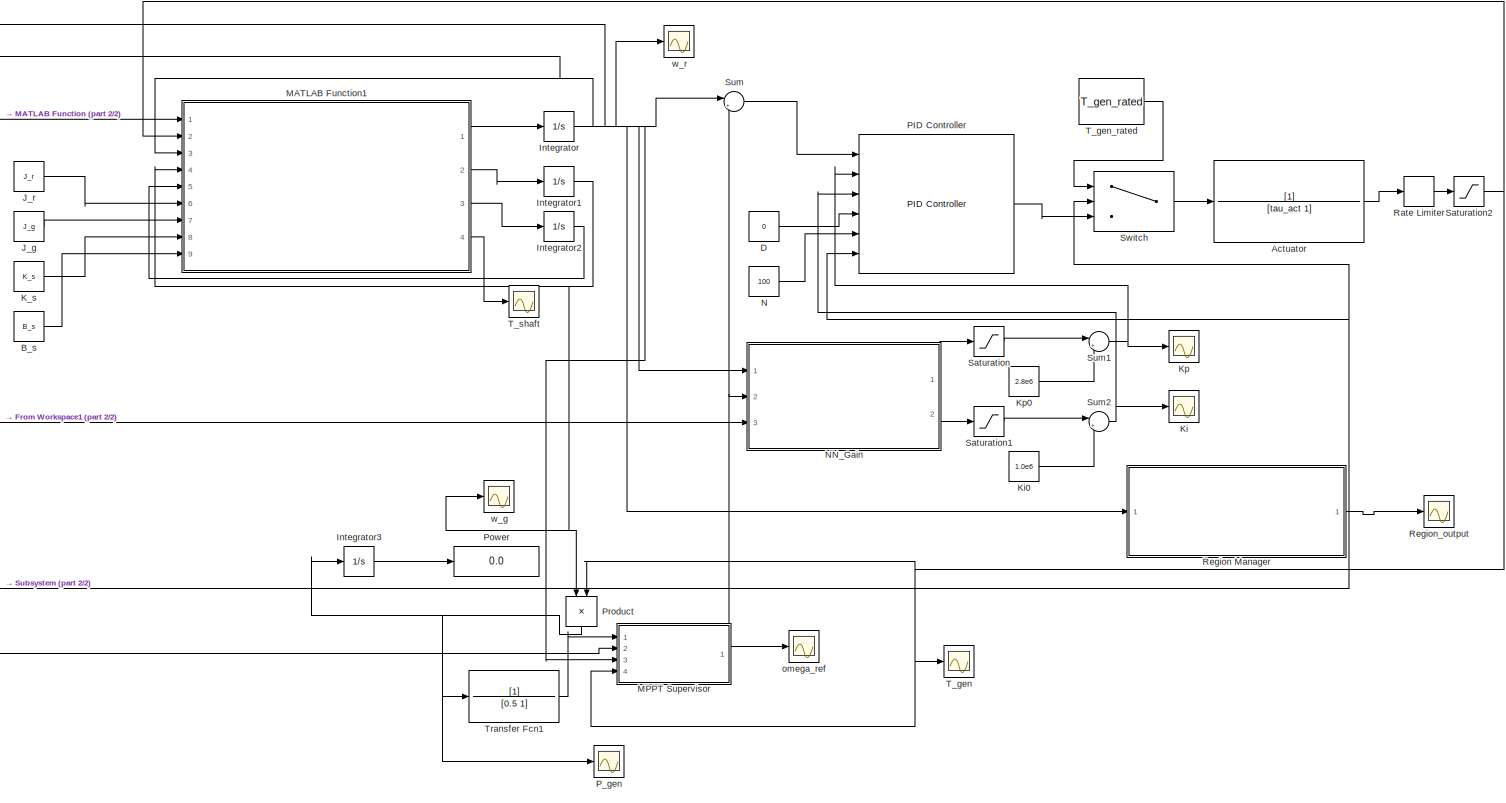
[diagram: root canvas - part 1/2, right side, full height]
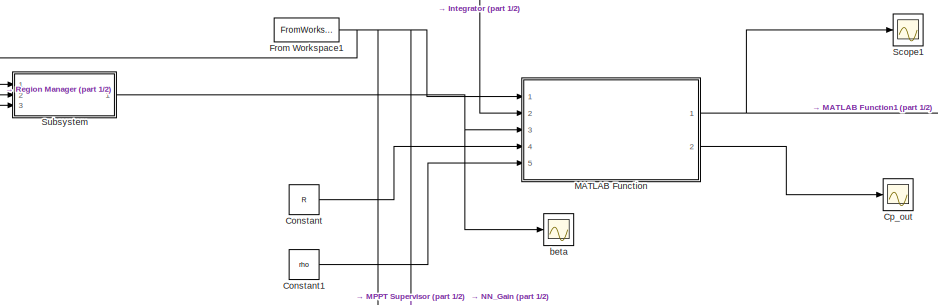
[diagram: root canvas - part 2/2, top left region]
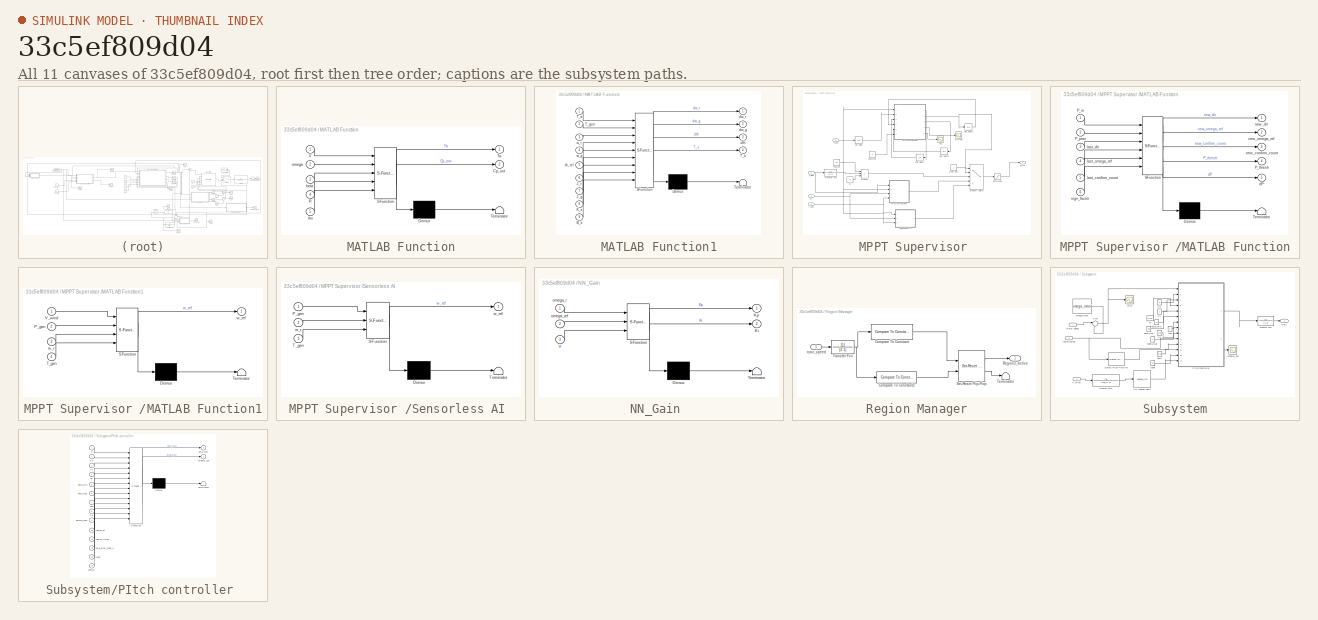
[diagram: thumbnail index - all 11 canvases of the model, root first then tree order]
MODEL slx_33c5ef809d04
KIND model
CONFIG AbsTol = auto
CONFIG EnableMultiTasking = off
CONFIG FixedStep = auto
CONFIG MaxStep = auto
CONFIG MinStep = auto
CONFIG RelTol = 1e-3
CONFIG SampleTimeConstraint = Unconstrained
CONFIG Solver = VariableStepAuto
CONFIG SolverName = VariableStepAuto
CONFIG StartTime = 0.0
CONFIG StopTime = 200
BLOCK [TransferFcn] Actuator
  Denominator = [tau_act 1]
BLOCK [Constant] B_s
  Value = B_s
BLOCK [Constant] Constant
  Value = R
BLOCK [Constant] Constant1
  Value = rho
BLOCK [Scope] Cp_out 
  Floating = off
  NumInputPorts = 1
  Ports = [1]
  ScopeSpecificationString = Simulink.scopes.TimeScopeBlockCfg('CurrentConfiguration', extmgr.ConfigurationSet(extmgr.Configuration('Core','General UI',true),extmgr.Configuration('Core','Source UI',true),extmgr.Configuration('Sources','WiredSimulink',true),extmgr.Configuration('Visuals','Time Domain',true,'SerializedDisplays',{struct('MinYLimReal','0.31469','MaxYLimReal','0.43768','YLabelReal','','MinYLimMag','0.31469','MaxYL...<+1373ch>
BLOCK [Constant] D
  Value = 0
BLOCK [FromWorkspace] From Workspace1
  SampleTime = 0.001
  VariableName = wind_ts
  ZeroCross = on
BLOCK [Integrator] Integrator
  InitialCondition = 1.5
  Ports = [1, 1]
BLOCK [Integrator] Integrator1
  Ports = [1, 1]
BLOCK [Integrator] Integrator2
  Ports = [1, 1]
BLOCK [Integrator] Integrator3
  Ports = [1, 1]
BLOCK [Constant] J_g
  Value = J_g
BLOCK [Constant] J_r
  Value = J_r
BLOCK [Constant] K_s
  Value = K_s
BLOCK [Scope] Ki 
  Floating = off
  NumInputPorts = 1
  Ports = [1]
  ScopeSpecificationString = Simulink.scopes.TimeScopeBlockCfg('CurrentConfiguration', extmgr.ConfigurationSet(extmgr.Configuration('Core','General UI',true),extmgr.Configuration('Core','Source UI',true),extmgr.Configuration('Sources','WiredSimulink',true,'DataLoggingVariableName','ScopeData1'),extmgr.Configuration('Visuals','Time Domain',true,'SerializedDisplays',{struct('MinYLimReal','300000.00000','MaxYLimReal','2300000.00...<+1438ch>
BLOCK [Constant] Ki0
  Value = 1.0e6
BLOCK [Scope] Kp
  Floating = off
  NumInputPorts = 1
  Ports = [1]
  ScopeSpecificationString = Simulink.scopes.TimeScopeBlockCfg('CurrentConfiguration', extmgr.ConfigurationSet(extmgr.Configuration('Core','General UI',true),extmgr.Configuration('Core','Source UI',true),extmgr.Configuration('Sources','WiredSimulink',true,'DataLoggingVariableName','ScopeData2'),extmgr.Configuration('Visuals','Time Domain',true,'SerializedDisplays',{struct('MinYLimReal','2430174.18942','MaxYLimReal','2431273.3...<+1440ch>
BLOCK [Constant] Kp0
  Value = 2.8e6
BLOCK [SubSystem] MATLAB Function
  ErrorFcn = Stateflow.Translate.translate
  PermitHierarchicalResolution = ExplicitOnly
  Ports = [5, 2]
  RequestExecContextInheritance = off
  SFBlockType = MATLAB Function
  TreatAsAtomicUnit = on
BLOCK [Demux] MATLAB Function/ Demux 
  Outputs = 1
  Ports = [1, 1]
BLOCK [S-Function] MATLAB Function/ SFunction 
  EnableBusSupport = on
  FunctionName = sf_sfun
  PortCounts = [5 3]
  Ports = [5, 3]
  SFcnIsStateOwnerBlock = off
  SFunctionDeploymentMode = off
  Tag = Stateflow S-Function 2
BLOCK [Terminator] MATLAB Function/ Terminator 
BLOCK [Outport] MATLAB Function/Cp_out
  IconDisplay = Port number
  Port = 2
BLOCK [Inport] MATLAB Function/R
  IconDisplay = Port number
  Port = 4
BLOCK [Outport] MATLAB Function/Ta
  IconDisplay = Port number
BLOCK [Inport] MATLAB Function/V
  IconDisplay = Port number
BLOCK [Inport] MATLAB Function/beta
  IconDisplay = Port number
  Port = 3
BLOCK [Inport] MATLAB Function/omega
  IconDisplay = Port number
  Port = 2
BLOCK [Inport] MATLAB Function/rho
  IconDisplay = Port number
  Port = 5
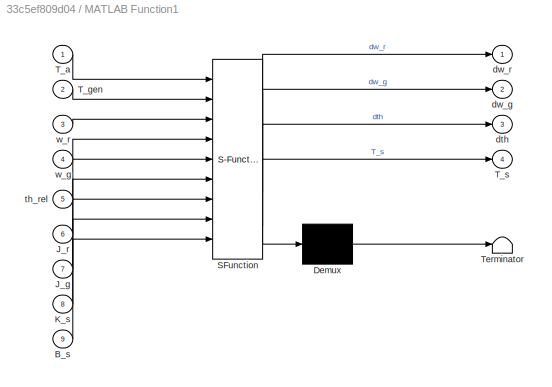
BLOCK [SubSystem] MATLAB Function1
  ErrorFcn = Stateflow.Translate.translate
  PermitHierarchicalResolution = ExplicitOnly
  Ports = [9, 4]
  RequestExecContextInheritance = off
  SFBlockType = MATLAB Function
  TreatAsAtomicUnit = on
BLOCK [Demux] MATLAB Function1/ Demux 
  Outputs = 1
  Ports = [1, 1]
BLOCK [S-Function] MATLAB Function1/ SFunction 
  EnableBusSupport = on
  FunctionName = sf_sfun
  PortCounts = [9 5]
  Ports = [9, 5]
  SFcnIsStateOwnerBlock = off
  SFunctionDeploymentMode = off
  Tag = Stateflow S-Function 1
BLOCK [Terminator] MATLAB Function1/ Terminator 
BLOCK [Inport] MATLAB Function1/B_s
  IconDisplay = Port number
  Port = 9
BLOCK [Inport] MATLAB Function1/J_g
  IconDisplay = Port number
  Port = 7
BLOCK [Inport] MATLAB Function1/J_r
  IconDisplay = Port number
  Port = 6
BLOCK [Inport] MATLAB Function1/K_s
  IconDisplay = Port number
  Port = 8
BLOCK [Inport] MATLAB Function1/T_a
  IconDisplay = Port number
BLOCK [Inport] MATLAB Function1/T_gen
  IconDisplay = Port number
  Port = 2
BLOCK [Outport] MATLAB Function1/T_s
  IconDisplay = Port number
  Port = 4
BLOCK [Outport] MATLAB Function1/dth
  IconDisplay = Port number
  Port = 3
BLOCK [Outport] MATLAB Function1/dw_g
  IconDisplay = Port number
  Port = 2
BLOCK [Outport] MATLAB Function1/dw_r
  IconDisplay = Port number
BLOCK [Inport] MATLAB Function1/th_rel
  IconDisplay = Port number
  Port = 5
BLOCK [Inport] MATLAB Function1/w_g
  IconDisplay = Port number
  Port = 4
BLOCK [Inport] MATLAB Function1/w_r
  IconDisplay = Port number
  Port = 3
BLOCK [SubSystem] MPPT Supervisor 
  Ports = [4, 1]
  RequestExecContextInheritance = off
BLOCK [Constant] MPPT Supervisor /Constant
  Value = -1
BLOCK [SubSystem] MPPT Supervisor /MATLAB Function
  ErrorFcn = Stateflow.Translate.translate
  PermitHierarchicalResolution = ExplicitOnly
  Ports = [6, 5]
  RequestExecContextInheritance = off
  SFBlockType = MATLAB Function
  TreatAsAtomicUnit = on
BLOCK [Demux] MPPT Supervisor /MATLAB Function/ Demux 
  Outputs = 1
  Ports = [1, 1]
BLOCK [S-Function] MPPT Supervisor /MATLAB Function/ SFunction 
  EnableBusSupport = on
  FunctionName = sf_sfun
  PortCounts = [6 6]
  Ports = [6, 6]
  SFcnIsStateOwnerBlock = off
  SFunctionDeploymentMode = off
  Tag = Stateflow S-Function 4
BLOCK [Terminator] MPPT Supervisor /MATLAB Function/ Terminator 
BLOCK [Inport] MPPT Supervisor /MATLAB Function/P_in
  IconDisplay = Port number
BLOCK [Inport] MPPT Supervisor /MATLAB Function/P_prev
  IconDisplay = Port number
  Port = 2
BLOCK [Outport] MPPT Supervisor /MATLAB Function/P_thresh
  IconDisplay = Port number
  Port = 4
BLOCK [Outport] MPPT Supervisor /MATLAB Function/dP
  IconDisplay = Port number
  Port = 5
BLOCK [Inport] MPPT Supervisor /MATLAB Function/last_confirm_count
  IconDisplay = Port number
  Port = 5
BLOCK [Inport] MPPT Supervisor /MATLAB Function/last_dir
  IconDisplay = Port number
  Port = 3
BLOCK [Inport] MPPT Supervisor /MATLAB Function/last_omega_ref
  IconDisplay = Port number
  Port = 4
BLOCK [Outport] MPPT Supervisor /MATLAB Function/new_confirm_count
  IconDisplay = Port number
  Port = 3
BLOCK [Outport] MPPT Supervisor /MATLAB Function/new_dir
  IconDisplay = Port number
BLOCK [Outport] MPPT Supervisor /MATLAB Function/new_omega_ref
  IconDisplay = Port number
  Port = 2
BLOCK [Inport] MPPT Supervisor /MATLAB Function/sign_factor
  IconDisplay = Port number
  Port = 6
BLOCK [SubSystem] MPPT Supervisor /MATLAB Function1
  ErrorFcn = Stateflow.Translate.translate
  PermitHierarchicalResolution = ExplicitOnly
  Ports = [4, 1]
  RequestExecContextInheritance = off
  SFBlockType = MATLAB Function
  TreatAsAtomicUnit = on
BLOCK [Demux] MPPT Supervisor /MATLAB Function1/ Demux 
  Outputs = 1
  Ports = [1, 1]
BLOCK [S-Function] MPPT Supervisor /MATLAB Function1/ SFunction 
  EnableBusSupport = on
  FunctionName = sf_sfun
  PortCounts = [4 2]
  Ports = [4, 2]
  SFcnIsStateOwnerBlock = off
  SFunctionDeploymentMode = off
  Tag = Stateflow S-Function 6
BLOCK [Terminator] MPPT Supervisor /MATLAB Function1/ Terminator 
BLOCK [Inport] MPPT Supervisor /MATLAB Function1/P_gen
  IconDisplay = Port number
  Port = 2
BLOCK [Inport] MPPT Supervisor /MATLAB Function1/T_gen
  IconDisplay = Port number
  Port = 4
BLOCK [Inport] MPPT Supervisor /MATLAB Function1/V_wind
  IconDisplay = Port number
BLOCK [Inport] MPPT Supervisor /MATLAB Function1/w_r
  IconDisplay = Port number
  Port = 3
BLOCK [Outport] MPPT Supervisor /MATLAB Function1/w_ref
  IconDisplay = Port number
BLOCK [Constant] MPPT Supervisor /MPPT Port
BLOCK [MultiPortSwitch] MPPT Supervisor /Multiport Switch
  InputSameDT = off
  Inputs = 4
  Ports = [5, 1]
  SaturateOnIntegerOverflow = off
BLOCK [Inport] MPPT Supervisor /P_gen 
  IconDisplay = Port number
BLOCK [Scope] MPPT Supervisor /P_thresh
  Floating = off
  NumInputPorts = 1
  Ports = [1]
  ScopeSpecificationString = Simulink.scopes.TimeScopeBlockCfg('CurrentConfiguration', extmgr.ConfigurationSet(extmgr.Configuration('Core','General UI',true),extmgr.Configuration('Core','Source UI',true),extmgr.Configuration('Sources','WiredSimulink',true,'DataLoggingVariableName','ScopeData1'),extmgr.Configuration('Visuals','Time Domain',true,'SerializedDisplays',{struct('MinYLimReal','-1145.65235','MaxYLimReal','11310.87118...<+1445ch>
BLOCK [Product] MPPT Supervisor /Product
  InputSameDT = off
  Inputs = **/
  OutDataTypeStr = Inherit: Inherit via internal rule
  Ports = [3, 1]
  RndMeth = Floor
  SaturateOnIntegerOverflow = off
BLOCK [Constant] MPPT Supervisor /R 
  Value = R
BLOCK [Saturate] MPPT Supervisor /Saturation
  InputPortMap = u0
  LowerLimit = 0.7
  Ports = [1, 1]
  UpperLimit = 2.2
BLOCK [SubSystem] MPPT Supervisor /Sensorless AI 
  ErrorFcn = Stateflow.Translate.translate
  PermitHierarchicalResolution = ExplicitOnly
  Ports = [3, 1]
  RequestExecContextInheritance = off
  SFBlockType = MATLAB Function
  TreatAsAtomicUnit = on
BLOCK [Demux] MPPT Supervisor /Sensorless AI / Demux 
  Outputs = 1
  Ports = [1, 1]
BLOCK [S-Function] MPPT Supervisor /Sensorless AI / SFunction 
  EnableBusSupport = on
  FunctionName = sf_sfun
  PortCounts = [3 2]
  Ports = [3, 2]
  SFcnIsStateOwnerBlock = off
  SFunctionDeploymentMode = off
  Tag = Stateflow S-Function 7
BLOCK [Terminator] MPPT Supervisor /Sensorless AI / Terminator 
BLOCK [Inport] MPPT Supervisor /Sensorless AI /P_gen
  IconDisplay = Port number
BLOCK [Inport] MPPT Supervisor /Sensorless AI /T_gen
  IconDisplay = Port number
  Port = 3
BLOCK [Inport] MPPT Supervisor /Sensorless AI /w_r
  IconDisplay = Port number
  Port = 2
BLOCK [Outport] MPPT Supervisor /Sensorless AI /w_ref
  IconDisplay = Port number
BLOCK [Constant] MPPT Supervisor /TSR_opt 
  Value = 8.1
BLOCK [Inport] MPPT Supervisor /T_gen 
  IconDisplay = Port number
  Port = 4
BLOCK [TransferFcn] MPPT Supervisor /Transfer Fcn
  Denominator = [1 1]
BLOCK [UnitDelay] MPPT Supervisor /Unit Delay
  HasFrameUpgradeWarning = on
BLOCK [UnitDelay] MPPT Supervisor /Unit Delay1
  HasFrameUpgradeWarning = on
  InitialCondition = 1
BLOCK [UnitDelay] MPPT Supervisor /Unit Delay2
  HasFrameUpgradeWarning = on
  InitialCondition = 1.5
BLOCK [UnitDelay] MPPT Supervisor /Unit Delay3
  HasFrameUpgradeWarning = on
BLOCK [Inport] MPPT Supervisor /V_wind 
  IconDisplay = Port number
  Port = 2
BLOCK [Scope] MPPT Supervisor /dp 
  Floating = off
  NumInputPorts = 1
  Ports = [1]
  ScopeSpecificationString = Simulink.scopes.TimeScopeBlockCfg('CurrentConfiguration', extmgr.ConfigurationSet(extmgr.Configuration('Core','General UI',true),extmgr.Configuration('Core','Source UI',true),extmgr.Configuration('Sources','WiredSimulink',true,'DataLoggingVariableName','ScopeData2'),extmgr.Configuration('Visuals','Time Domain',true,'SerializedDisplays',{struct('MinYLimReal','-396506.79542','MaxYLimReal','927633.08...<+1494ch>
BLOCK [Inport] MPPT Supervisor /w_r
  IconDisplay = Port number
  Port = 3
BLOCK [Outport] MPPT Supervisor /w_ref
  IconDisplay = Port number
BLOCK [Constant] N 
  Value = 100
BLOCK [SubSystem] NN_Gain 
  ErrorFcn = Stateflow.Translate.translate
  PermitHierarchicalResolution = ExplicitOnly
  Ports = [3, 2]
  RequestExecContextInheritance = off
  SFBlockType = MATLAB Function
  TreatAsAtomicUnit = on
BLOCK [Demux] NN_Gain / Demux 
  Outputs = 1
  Ports = [1, 1]
BLOCK [S-Function] NN_Gain / SFunction 
  EnableBusSupport = on
  FunctionName = sf_sfun
  PortCounts = [3 3]
  Ports = [3, 3]
  SFcnIsStateOwnerBlock = off
  SFunctionDeploymentMode = off
  Tag = Stateflow S-Function 3
BLOCK [Terminator] NN_Gain / Terminator 
BLOCK [Outport] NN_Gain /Ki
  IconDisplay = Port number
  Port = 2
BLOCK [Outport] NN_Gain /Kp
  IconDisplay = Port number
BLOCK [Inport] NN_Gain /V
  IconDisplay = Port number
  Port = 3
BLOCK [Inport] NN_Gain /omega_r
  IconDisplay = Port number
BLOCK [Inport] NN_Gain /omega_ref
  IconDisplay = Port number
  Port = 2
BLOCK [Reference] PID Controller  REF=simulink/Continuous/PID Controller
  Ports = [6, 1]
  SourceBlock = simulink/Continuous/PID Controller
  SourceProductBaseCode = SL
  SourceProductName = Simulink
  SourceType = PID 1dof
BLOCK [Scope] P_gen 
  Floating = off
  NumInputPorts = 1
  Ports = [1]
  ScopeSpecificationString = Simulink.scopes.TimeScopeBlockCfg('CurrentConfiguration', extmgr.ConfigurationSet(extmgr.Configuration('Core','General UI',true),extmgr.Configuration('Core','Source UI',true),extmgr.Configuration('Sources','WiredSimulink',true,'DataLoggingVariableName','ScopeData2'),extmgr.Configuration('Visuals','Time Domain',true,'SerializedDisplays',{struct('MinYLimReal','-242584.06986','MaxYLimReal','2183256.6...<+1480ch>
BLOCK [Display] Power
  Decimation = 1
  Ports = [1]
BLOCK [Product] Product
  InputSameDT = off
  OutDataTypeStr = Inherit: Inherit via internal rule
  Ports = [2, 1]
  RndMeth = Floor
  SaturateOnIntegerOverflow = off
BLOCK [RateLimiter] Rate Limiter
  FallingSlewLimit = -1e5
  RisingSlewLimit = 1e5
  SampleTimeMode = inherited
BLOCK [SubSystem] Region Manager
  Ports = [1, 1]
  RequestExecContextInheritance = off
BLOCK [Reference] Region Manager/Compare To Constant  REF=simulink/Logic and Bit
Operations/Compare
To Constant
  Ports = [1, 1]
  SourceBlock = simulink/Logic and Bit\nOperations/Compare\nTo Constant
  SourceProductBaseCode = SL
  SourceProductName = Simulink
  SourceType = Compare To Constant
BLOCK [Reference] Region Manager/Compare To Constant2  REF=simulink/Logic and Bit
Operations/Compare
To Constant
  Ports = [1, 1]
  SourceBlock = simulink/Logic and Bit\nOperations/Compare\nTo Constant
  SourceProductBaseCode = SL
  SourceProductName = Simulink
  SourceType = Compare To Constant
BLOCK [Outport] Region Manager/Region3_active 
  IconDisplay = Port number
BLOCK [Reference] Region Manager/Set-Reset Flip-Flop  REF=eeGeneralControl/Set-Reset Flip-Flop
  Ports = [2, 2]
  SourceBlock = eeGeneralControl/Set-Reset Flip-Flop
  SourceProductBaseCode = PS
  SourceProductName = Simscape Electrical
  SourceType = Set-Reset Flip-Flop
BLOCK [Terminator] Region Manager/Terminator
BLOCK [TransferFcn] Region Manager/Transfer Fcn
  Denominator = [2 1]
BLOCK [Inport] Region Manager/rotor_speed 
  IconDisplay = Port number
BLOCK [Scope] Region_output 
  Floating = off
  NumInputPorts = 1
  Ports = [1]
  ScopeSpecificationString = Simulink.scopes.TimeScopeBlockCfg('CurrentConfiguration', extmgr.ConfigurationSet(extmgr.Configuration('Core','General UI',true),extmgr.Configuration('Core','Source UI',true),extmgr.Configuration('Sources','WiredSimulink',true,'DataLoggingVariableName','ScopeData4'),extmgr.Configuration('Visuals','Time Domain',true,'SerializedDisplays',{struct('MinYLimReal','-0.125','MaxYLimReal','1.125','YLabelRe...<+1424ch>
BLOCK [Saturate] Saturation
  InputPortMap = u0
  LowerLimit = -8.4e5
  Ports = [1, 1]
  UpperLimit = 8.4e5
BLOCK [Saturate] Saturation1
  InputPortMap = u0
  LowerLimit = -3e5
  Ports = [1, 1]
  UpperLimit = 3e5
BLOCK [Saturate] Saturation2
  InputPortMap = u0
  LowerLimit = -8e5
  Ports = [1, 1]
  UpperLimit = 8e5
BLOCK [Scope] Scope1
  Floating = off
  NumInputPorts = 1
  Ports = [1]
  ScopeSpecificationString = Simulink.scopes.TimeScopeBlockCfg('CurrentConfiguration', extmgr.ConfigurationSet(extmgr.Configuration('Core','General UI',true),extmgr.Configuration('Core','Source UI',true),extmgr.Configuration('Sources','WiredSimulink',true,'DataLoggingVariableName','ScopeData1'),extmgr.Configuration('Visuals','Time Domain',true,'SerializedDisplays',{struct('MinYLimReal','-2417.69691','MaxYLimReal','38461.72479...<+1403ch>
BLOCK [SubSystem] Subsystem
  Ports = [3, 1]
  RequestExecContextInheritance = off
BLOCK [Lookup_n-D] Subsystem/1-D Lookup Table
  BreakpointsForDimension1 = FF_Wind_Axis
  InternalRulePriority = Speed
  NumberOfTableDimensions = 1
  Ports = [1, 1]
  RndMeth = Simplest
  Table = FF_Pitch_Table
BLOCK [Reference] Subsystem/Detect Rise Positive  REF=simulink/Logic and Bit
Operations/Detect Rise
Positive
  Ports = [1, 1]
  SourceBlock = simulink/Logic and Bit\nOperations/Detect Rise\nPositive
  SourceProductBaseCode = SL
  SourceProductName = Simulink
  SourceType = Detect Rise Positive
BLOCK [Constant] Subsystem/Kb
  Value = 0.05
BLOCK [Constant] Subsystem/Ki
BLOCK [Constant] Subsystem/Kp
  Value = 3
BLOCK [Outport] Subsystem/Out1
  IconDisplay = Port number
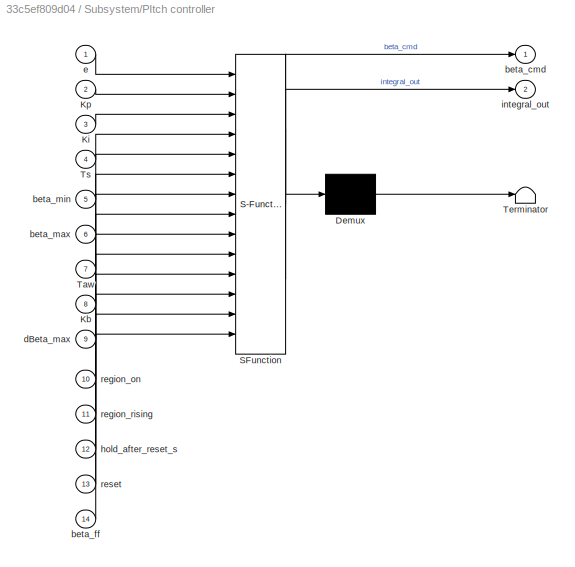
BLOCK [SubSystem] Subsystem/PItch controller 
  ErrorFcn = Stateflow.Translate.translate
  PermitHierarchicalResolution = ExplicitOnly
  Ports = [14, 2]
  RequestExecContextInheritance = off
  SFBlockType = MATLAB Function
  TreatAsAtomicUnit = on
BLOCK [Demux] Subsystem/PItch controller / Demux 
  Outputs = 1
  Ports = [1, 1]
BLOCK [S-Function] Subsystem/PItch controller / SFunction 
  EnableBusSupport = on
  FunctionName = sf_sfun
  PortCounts = [14 3]
  Ports = [14, 3]
  SFcnIsStateOwnerBlock = off
  SFunctionDeploymentMode = off
  Tag = Stateflow S-Function 5
BLOCK [Terminator] Subsystem/PItch controller / Terminator 
BLOCK [Inport] Subsystem/PItch controller /Kb
  IconDisplay = Port number
  Port = 8
BLOCK [Inport] Subsystem/PItch controller /Ki
  IconDisplay = Port number
  Port = 3
BLOCK [Inport] Subsystem/PItch controller /Kp
  IconDisplay = Port number
  Port = 2
BLOCK [Inport] Subsystem/PItch controller /Taw
  IconDisplay = Port number
  Port = 7
BLOCK [Inport] Subsystem/PItch controller /Ts
  IconDisplay = Port number
  Port = 4
BLOCK [Outport] Subsystem/PItch controller /beta_cmd
  IconDisplay = Port number
BLOCK [Inport] Subsystem/PItch controller /beta_ff
  IconDisplay = Port number
  Port = 14
BLOCK [Inport] Subsystem/PItch controller /beta_max
  IconDisplay = Port number
  Port = 6
BLOCK [Inport] Subsystem/PItch controller /beta_min
  IconDisplay = Port number
  Port = 5
BLOCK [Inport] Subsystem/PItch controller /dBeta_max
  IconDisplay = Port number
  Port = 9
BLOCK [Inport] Subsystem/PItch controller /e
  IconDisplay = Port number
BLOCK [Inport] Subsystem/PItch controller /hold_after_reset_s
  IconDisplay = Port number
  Port = 12
BLOCK [Outport] Subsystem/PItch controller /integral_out
  IconDisplay = Port number
  Port = 2
BLOCK [Inport] Subsystem/PItch controller /region_on
  IconDisplay = Port number
  Port = 10
BLOCK [Inport] Subsystem/PItch controller /region_rising
  IconDisplay = Port number
  Port = 11
BLOCK [Inport] Subsystem/PItch controller /reset
  IconDisplay = Port number
  Port = 13
BLOCK [Inport] Subsystem/Rotor speed
  IconDisplay = Port number
BLOCK [Sum] Subsystem/Sum
  IconShape = round
  InputSameDT = off
  Inputs = |+-
  OutDataTypeStr = Inherit: Inherit via internal rule
  Ports = [2, 1]
  SaturateOnIntegerOverflow = off
BLOCK [Constant] Subsystem/Taw
  Value = 0.1
BLOCK [TransferFcn] Subsystem/Transfer Fcn
  Denominator = [1 1]
BLOCK [TransferFcn] Subsystem/Transfer Fcn1
  Denominator = [tau_ff 1]
BLOCK [Constant] Subsystem/Ts
  Value = 0.01
BLOCK [Inport] Subsystem/V_wind 
  IconDisplay = Port number
  Port = 3
BLOCK [Constant] Subsystem/beta_max
  Value = 30
BLOCK [Constant] Subsystem/beta_min
  Value = 0
BLOCK [Constant] Subsystem/dbeta_Max
  Value = 4
BLOCK [Scope] Subsystem/error
  Floating = off
  NumInputPorts = 1
  Ports = [1]
  ScopeSpecificationString = Simulink.scopes.TimeScopeBlockCfg('CurrentConfiguration', extmgr.ConfigurationSet(extmgr.Configuration('Core','General UI',true),extmgr.Configuration('Core','Source UI',true),extmgr.Configuration('Sources','WiredSimulink',true,'DataLoggingVariableName','ScopeData1'),extmgr.Configuration('Visuals','Time Domain',true),extmgr.Configuration('Tools','Plot Navigation',true),extmgr.Configuration('Tools',...<+40ch>
BLOCK [Constant] Subsystem/hold
  Value = 0.5
BLOCK [Scope] Subsystem/integral_out 
  Floating = off
  NumInputPorts = 1
  Ports = [1]
  ScopeSpecificationString = Simulink.scopes.TimeScopeBlockCfg('CurrentConfiguration', extmgr.ConfigurationSet(extmgr.Configuration('Core','General UI',true),extmgr.Configuration('Core','Source UI',true),extmgr.Configuration('Sources','WiredSimulink',true,'DataLoggingVariableName','ScopeData1'),extmgr.Configuration('Visuals','Time Domain',true,'SerializedDisplays',{struct('MinYLimReal','-0.10048','MaxYLimReal','0.97931','YLab...<+1389ch>
BLOCK [Constant] Subsystem/omega_rated 
  Value = omega_rated
BLOCK [Inport] Subsystem/region_output
  IconDisplay = Port number
  Port = 2
BLOCK [Constant] Subsystem/reset
  Value = 0
BLOCK [Sum] Sum
  IconShape = round
  InputSameDT = off
  Inputs = |+-
  OutDataTypeStr = Inherit: Inherit via internal rule
  Ports = [2, 1]
  SaturateOnIntegerOverflow = off
BLOCK [Sum] Sum1
  IconShape = round
  InputSameDT = off
  Inputs = |++
  OutDataTypeStr = Inherit: Inherit via internal rule
  Ports = [2, 1]
  SaturateOnIntegerOverflow = off
BLOCK [Sum] Sum2
  IconShape = round
  InputSameDT = off
  Inputs = |++
  OutDataTypeStr = Inherit: Inherit via internal rule
  Ports = [2, 1]
  SaturateOnIntegerOverflow = off
BLOCK [Switch] Switch
  Criteria = u2 > Threshold
  InputSameDT = off
  SaturateOnIntegerOverflow = off
  Threshold = 0.5
BLOCK [Scope] T_gen 
  Floating = off
  NumInputPorts = 1
  Ports = [1]
  ScopeSpecificationString = Simulink.scopes.TimeScopeBlockCfg('CurrentConfiguration', extmgr.ConfigurationSet(extmgr.Configuration('Core','General UI',true),extmgr.Configuration('Core','Source UI',true),extmgr.Configuration('Sources','WiredSimulink',true,'DataLoggingVariableName','ScopeData1'),extmgr.Configuration('Visuals','Time Domain',true,'SerializedDisplays',{struct('MinYLimReal','-62500.00000','MaxYLimReal','562500.000...<+1481ch>
BLOCK [Constant] T_gen_rated 
  Value = T_gen_rated
BLOCK [Scope] T_shaft
  Floating = off
  NumInputPorts = 1
  Ports = [1]
  ScopeSpecificationString = Simulink.scopes.TimeScopeBlockCfg('CurrentConfiguration', extmgr.ConfigurationSet(extmgr.Configuration('Core','General UI',true),extmgr.Configuration('Core','Source UI',true),extmgr.Configuration('Sources','WiredSimulink',true,'DataLoggingVariableName','ScopeData1'),extmgr.Configuration('Visuals','Time Domain',true,'SerializedDisplays',{struct('MinYLimReal','-186049.95718','MaxYLimReal','738574.25...<+1446ch>
BLOCK [TransferFcn] Transfer Fcn1
  Denominator = [0.5 1]
BLOCK [Scope] beta
  Floating = off
  NumInputPorts = 1
  Ports = [1]
  ScopeSpecificationString = Simulink.scopes.TimeScopeBlockCfg('CurrentConfiguration', extmgr.ConfigurationSet(extmgr.Configuration('Core','General UI',true),extmgr.Configuration('Core','Source UI',true),extmgr.Configuration('Sources','WiredSimulink',true,'DataLoggingVariableName','ScopeData3'),extmgr.Configuration('Visuals','Time Domain',true,'SerializedDisplays',{struct('MinYLimReal','-2.42319','MaxYLimReal','21.80872','YLa...<+1394ch>
BLOCK [Scope] omega_ref
  Floating = off
  NumInputPorts = 1
  Ports = [1]
  ScopeSpecificationString = Simulink.scopes.TimeScopeBlockCfg('CurrentConfiguration', extmgr.ConfigurationSet(extmgr.Configuration('Core','General UI',true),extmgr.Configuration('Core','Source UI',true),extmgr.Configuration('Sources','WiredSimulink',true,'DataLoggingVariableName','ScopeData3'),extmgr.Configuration('Visuals','Time Domain',true,'SerializedDisplays',{struct('MinYLimReal','1.79898','MaxYLimReal','1.85589','YLabe...<+1436ch>
BLOCK [Scope] w_g
  Floating = off
  NumInputPorts = 1
  Ports = [1]
  ScopeSpecificationString = Simulink.scopes.TimeScopeBlockCfg('CurrentConfiguration', extmgr.ConfigurationSet(extmgr.Configuration('Core','General UI',true),extmgr.Configuration('Core','Source UI',true),extmgr.Configuration('Sources','WiredSimulink',true,'DataLoggingVariableName','ScopeData4'),extmgr.Configuration('Visuals','Time Domain',true,'SerializedDisplays',{struct('MinYLimReal','-0.29555','MaxYLimReal','2.65997','YLab...<+1438ch>
BLOCK [Scope] w_r
  Floating = off
  NumInputPorts = 1
  Ports = [1]
  ScopeSpecificationString = Simulink.scopes.TimeScopeBlockCfg('CurrentConfiguration', extmgr.ConfigurationSet(extmgr.Configuration('Core','General UI',true),extmgr.Configuration('Core','Source UI',true),extmgr.Configuration('Sources','WiredSimulink',true,'DataLoggingVariableName','ScopeData2'),extmgr.Configuration('Visuals','Time Domain',true,'SerializedDisplays',{struct('MinYLimReal','1.4486','MaxYLimReal','1.96257','YLabel...<+1445ch>
LINE Actuator:1 -> Rate Limiter:1
LINE B_s:1 -> MATLAB Function1:9
LINE Constant1:1 -> MATLAB Function:5
LINE Constant:1 -> MATLAB Function:4
LINE D:1 -> PID Controller:4
NET From Workspace1:1 -> MATLAB Function:1, MPPT Supervisor :2, NN_Gain :3, Subsystem:3
NET Integrator1:1 -> MATLAB Function1:4, Product:1, w_g:1
LINE Integrator2:1 -> MATLAB Function1:5
LINE Integrator3:1 -> Power:1
NET Integrator:1 -> MATLAB Function1:3, MATLAB Function:2, MPPT Supervisor :3, NN_Gain :1, Region Manager:1, Subsystem:1, Sum:1, w_r:1
LINE J_g:1 -> MATLAB Function1:7
LINE J_r:1 -> MATLAB Function1:6
LINE K_s:1 -> MATLAB Function1:8
LINE Ki0:1 -> Sum2:2
LINE Kp0:1 -> Sum1:2
LINE MATLAB Function1:1 -> Integrator:1
LINE MATLAB Function1:2 -> Integrator1:1
LINE MATLAB Function1:3 -> Integrator2:1
LINE MATLAB Function1:4 -> T_shaft:1
NET MATLAB Function:1 -> MATLAB Function1:1, Scope1:1
LINE MATLAB Function:2 -> Cp_out :1
LINE MPPT Supervisor /Constant:1 -> MPPT Supervisor /MATLAB Function:6
LINE MPPT Supervisor /MATLAB Function1:1 -> MPPT Supervisor /Multiport Switch:4
LINE MPPT Supervisor /MATLAB Function:1 -> MPPT Supervisor /Unit Delay1:1
NET MPPT Supervisor /MATLAB Function:2 -> MPPT Supervisor /Multiport Switch:2, MPPT Supervisor /Unit Delay2:1
LINE MPPT Supervisor /MATLAB Function:3 -> MPPT Supervisor /Unit Delay3:1
LINE MPPT Supervisor /MATLAB Function:4 -> MPPT Supervisor /P_thresh:1
LINE MPPT Supervisor /MATLAB Function:5 -> MPPT Supervisor /dp :1
LINE MPPT Supervisor /MPPT Port:1 -> MPPT Supervisor /Multiport Switch:1
LINE MPPT Supervisor /Multiport Switch:1 -> MPPT Supervisor /Saturation:1
NET MPPT Supervisor /P_gen :1 -> MPPT Supervisor /MATLAB Function1:2, MPPT Supervisor /MATLAB Function:1, MPPT Supervisor /Sensorless AI :1, MPPT Supervisor /Unit Delay:1
LINE MPPT Supervisor /Product:1 -> MPPT Supervisor /Multiport Switch:3
LINE MPPT Supervisor /R :1 -> MPPT Supervisor /Product:3
LINE MPPT Supervisor /Saturation:1 -> MPPT Supervisor /w_ref:1
LINE MPPT Supervisor /Sensorless AI :1 -> MPPT Supervisor /Multiport Switch:5
LINE MPPT Supervisor /TSR_opt :1 -> MPPT Supervisor /Product:1
NET MPPT Supervisor /T_gen :1 -> MPPT Supervisor /MATLAB Function1:4, MPPT Supervisor /Sensorless AI :3
LINE MPPT Supervisor /Transfer Fcn:1 -> MPPT Supervisor /Product:2
LINE MPPT Supervisor /Unit Delay1:1 -> MPPT Supervisor /MATLAB Function:3
LINE MPPT Supervisor /Unit Delay2:1 -> MPPT Supervisor /MATLAB Function:4
LINE MPPT Supervisor /Unit Delay3:1 -> MPPT Supervisor /MATLAB Function:5
LINE MPPT Supervisor /Unit Delay:1 -> MPPT Supervisor /MATLAB Function:2
NET MPPT Supervisor /V_wind :1 -> MPPT Supervisor /MATLAB Function1:1, MPPT Supervisor /Transfer Fcn:1
NET MPPT Supervisor /w_r:1 -> MPPT Supervisor /MATLAB Function1:3, MPPT Supervisor /Sensorless AI :2
NET MPPT Supervisor :1 -> NN_Gain :2, Sum:2, omega_ref:1
LINE N :1 -> PID Controller:5
LINE NN_Gain :1 -> Saturation:1
LINE NN_Gain :2 -> Saturation1:1
LINE PID Controller:1 -> Switch:3
NET Product:1 -> Integrator3:1, P_gen :1, Transfer Fcn1:1
LINE Rate Limiter:1 -> Saturation2:1
LINE Region Manager/Compare To Constant2:1 -> Region Manager/Set-Reset Flip-Flop:2
LINE Region Manager/Compare To Constant:1 -> Region Manager/Set-Reset Flip-Flop:1
LINE Region Manager/Set-Reset Flip-Flop:1 -> Region Manager/Region3_active :1
LINE Region Manager/Set-Reset Flip-Flop:2 -> Region Manager/Terminator:1
NET Region Manager/Transfer Fcn:1 -> Region Manager/Compare To Constant2:1, Region Manager/Compare To Constant:1
LINE Region Manager/rotor_speed :1 -> Region Manager/Transfer Fcn:1
NET Region Manager:1 -> PID Controller:6, Region_output :1, Subsystem:2, Switch:2
LINE Saturation1:1 -> Sum2:1
NET Saturation2:1 -> MATLAB Function1:2, MPPT Supervisor :4, Product:2, T_gen :1
LINE Saturation:1 -> Sum1:1
LINE Subsystem/1-D Lookup Table:1 -> Subsystem/PItch controller :14
LINE Subsystem/Detect Rise Positive:1 -> Subsystem/PItch controller :11
LINE Subsystem/Kb:1 -> Subsystem/PItch controller :8
LINE Subsystem/Ki:1 -> Subsystem/PItch controller :3
LINE Subsystem/Kp:1 -> Subsystem/PItch controller :2
LINE Subsystem/PItch controller :1 -> Subsystem/Transfer Fcn:1
LINE Subsystem/PItch controller :2 -> Subsystem/integral_out :1
LINE Subsystem/Rotor speed:1 -> Subsystem/Sum:1
NET Subsystem/Sum:1 -> Subsystem/PItch controller :1, Subsystem/error:1
LINE Subsystem/Taw:1 -> Subsystem/PItch controller :7
LINE Subsystem/Transfer Fcn1:1 -> Subsystem/1-D Lookup Table:1
LINE Subsystem/Transfer Fcn:1 -> Subsystem/Out1:1
LINE Subsystem/Ts:1 -> Subsystem/PItch controller :4
LINE Subsystem/V_wind :1 -> Subsystem/Transfer Fcn1:1
LINE Subsystem/beta_max:1 -> Subsystem/PItch controller :6
LINE Subsystem/beta_min:1 -> Subsystem/PItch controller :5
LINE Subsystem/dbeta_Max:1 -> Subsystem/PItch controller :9
LINE Subsystem/hold:1 -> Subsystem/PItch controller :12
LINE Subsystem/omega_rated :1 -> Subsystem/Sum:2
NET Subsystem/region_output:1 -> Subsystem/Detect Rise Positive:1, Subsystem/PItch controller :10
LINE Subsystem/reset:1 -> Subsystem/PItch controller :13
NET Subsystem:1 -> MATLAB Function:3, beta:1
NET Sum1:1 -> Kp:1, PID Controller:2
NET Sum2:1 -> Ki :1, PID Controller:3
LINE Sum:1 -> PID Controller:1
LINE Switch:1 -> Actuator:1
LINE T_gen_rated :1 -> Switch:1
LINE Transfer Fcn1:1 -> MPPT Supervisor :1
note: NET lines group one-source signal fan-out (src -> all destinations, sorted); 1:1 wires keep LINE
CHART MATLAB Function1 states=1 transitions=1
  STATE_LABEL 'eML_blk_kernel()'
  STATE_LABEL 'SCRIPT:\nfunction [dw_r, dw_g, dth,T_s] = two_mass_dynamics_derivatives(T_a, T_gen, w_r, w_g, th_rel, J_r, J_g, K_s, B_s)\n    % This function now calculates DERIVATIVES, not states.\n\n    % Parameters (can be passed in or defined here)\n\n\n    % Shaft torque calculation (based on current states)\n    T_s = K_s * th_rel + B_s * (w_r - w_g);\n\n    % Output the derivatives\n    dw_r = (T_a - T_s) / J_r;\n   ...<+54ch>'
CHART MATLAB Function states=1 transitions=1
  STATE_LABEL 'eML_blk_kernel()'
  STATE_LABEL 'SCRIPT:\nfunction [Ta, Cp_out] = aero_torque(V, omega, beta, R, rho)\n%#codegen\n% Aero torque using analytic Cp; no structs/buses required.\n% Inputs:\n%   V     - wind speed [m/s]\n%   omega - rotor speed [rad/s]\n%   beta  - pitch [deg]\n%   R     - rotor radius [m]\n%   rho   - air density [kg/m^3]\n% Outputs:\n%   Ta    - aerodynamic torque [N*m]\n%   Cp_out- power coefficient (dimensionless)\n\n% Protect ...<+810ch>'
CHART NN_Gain
 states=1 transitions=1
  STATE_LABEL 'eML_blk_kernel()'
  STATE_LABEL 'SCRIPT:\nfunction [Kp, Ki] = NN_GainScheduler(omega_r, omega_ref, V)\n%#codegen\n% This block calls an external helper function to run the network.\n\n% Tell the Coder that \'runMyNet\' is an external MATLAB function\ncoder.extrinsic(\'runMyNet\');\n\n% --- Pre-allocate all variables for the Coder ---\n% This prevents any "undefined variable" errors.\nKp = 0.0;\nKi = 0.0;\nK  = zeros(2,1); % K is a 2x1 vector of ...<+297ch>'
CHART MPPT Supervisor
/MATLAB Function states=1 transitions=1
  STATE_LABEL 'eML_blk_kernel()'
  STATE_LABEL 'SCRIPT:\nfunction [new_dir, new_omega_ref, new_confirm_count, P_thresh, dP] = po_fcn( ...\n    P_in, P_prev, last_dir, last_omega_ref, last_confirm_count, sign_factor)\n% P&O robust step decision\n% Inputs:\n%  P_in   - filtered power at current step\n%  P_prev - filtered power at previous step (UnitDelay)\n%  last_dir - previous perturbation direction (+1 or -1) (UnitDelay)\n%  last_omega_ref - previous ...<+2431ch>'
CHART Subsystem/PItch controller
 states=1 transitions=1
  STATE_LABEL 'eML_blk_kernel()'
  STATE_LABEL 'SCRIPT:\nfunction [beta_cmd, integral_out] = pitch_PI_safe(e, Kp, Ki, Ts, ...\n    beta_min, beta_max, Taw, Kb, dBeta_max, region_on, region_rising, hold_after_reset_s, reset, beta_ff)\n% Safe PI: anti-windup, conditional integrate, soft reset/unwind while held\n% (Units: beta in degrees or same units used in model)\nif ~region_on\n    beta_ff = 0;\nend\n\n% ---- DEFAULT PARAMS (tune as needed) ----\nif nar...<+2482ch>'
CHART MPPT Supervisor
/MATLAB Function1 states=1 transitions=1
  STATE_LABEL 'eML_blk_kernel()'
  STATE_LABEL "SCRIPT:\nfunction w_ref = AI_MPPT(V_wind, P_gen, w_r, T_gen)\n%#codegen\n\n% Tell Simulink that run_AE_MPPT is an external MATLAB file\ncoder.extrinsic('run_AE_MPPT');\n\n% Prepare the input vector\ninputs = [V_wind; P_gen; w_r; T_gen];\n\n% Initialize output for Coder safety\nw_ref = 0.0;\n\n% Call the helper function\nw_ref = run_AE_MPPT(inputs);"
CHART MPPT Supervisor
/Sensorless AI
 states=1 transitions=1
  STATE_LABEL 'eML_blk_kernel()'
  STATE_LABEL "SCRIPT:\nfunction w_ref = Sensorless_AI(P_gen, w_r, T_gen)\n%#codegen\n\n% Tell Simulink to use the external helper file\ncoder.extrinsic('run_sensorless_AI');\n\n% Prepare input vector\ninputs = [P_gen; w_r; T_gen];\n\n% Initialize output for Coder safety\nw_ref = 0.0;\n\n% Call the brain\nw_ref = run_sensorless_AI(inputs);\n\nend"
